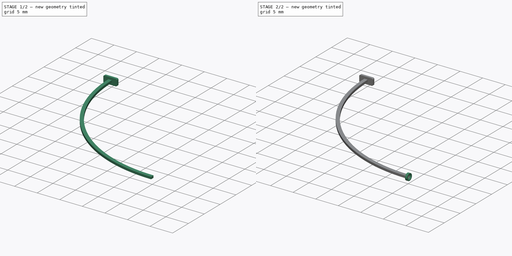
[diagram: build sequence overview — one tinted view per stage of 2, left to right]
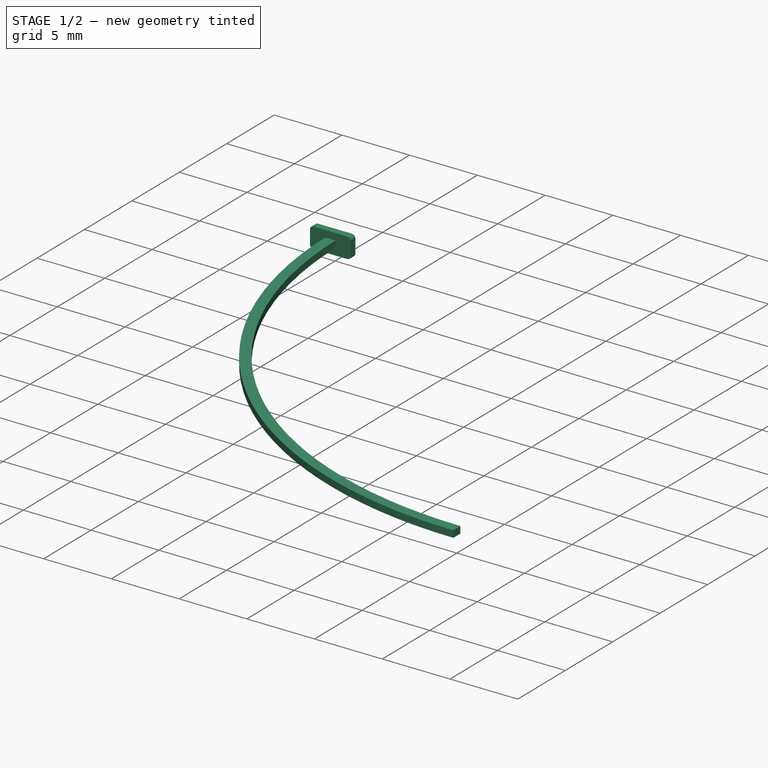
[diagram: stage 1 of 2 — iso view after this stage's code; geometry added in this stage tinted green]
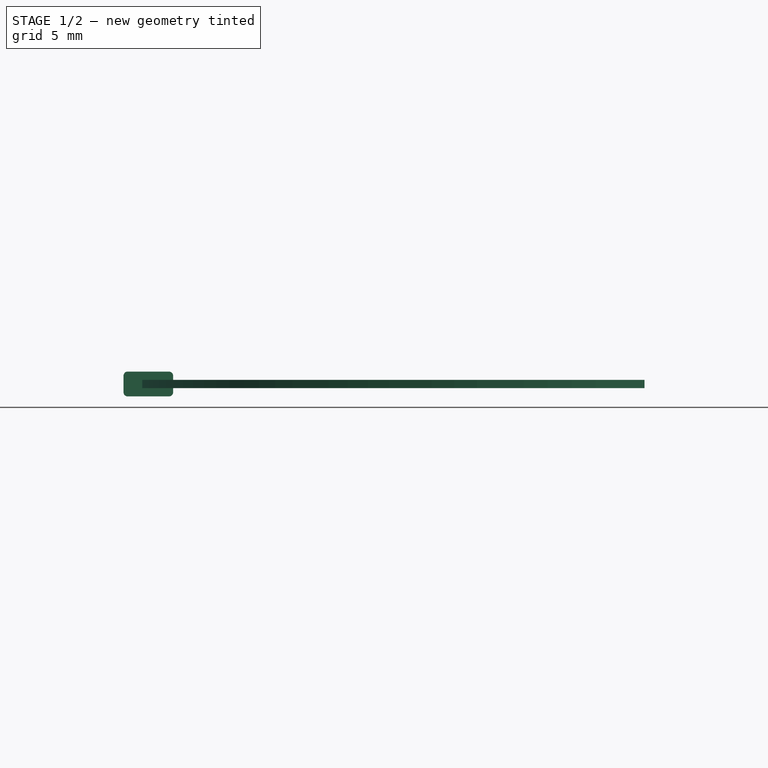
[diagram: stage 1 of 2 — front view after this stage's code; geometry added in this stage tinted green]
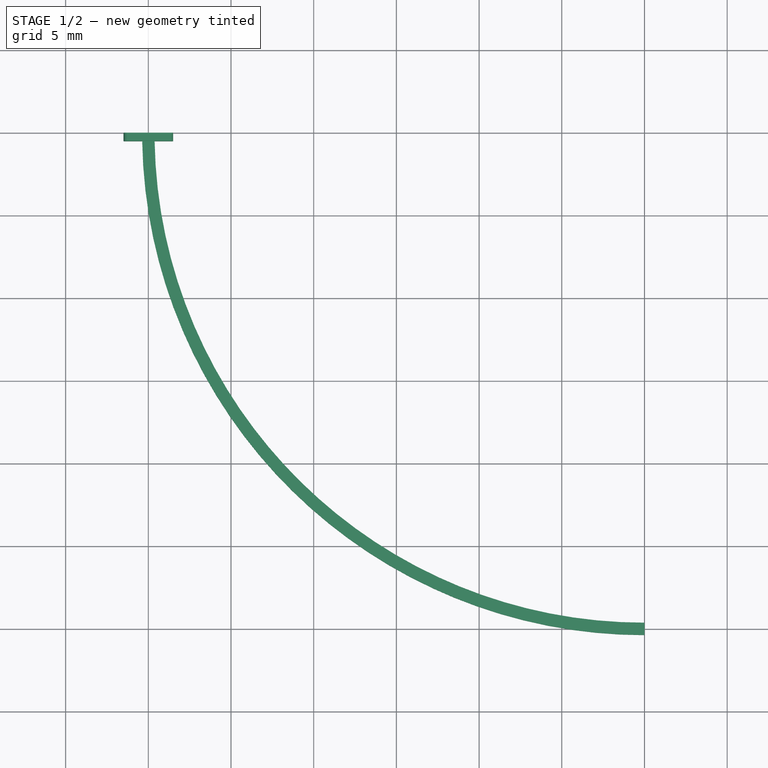
[diagram: stage 1 of 2 — top view after this stage's code; geometry added in this stage tinted green]
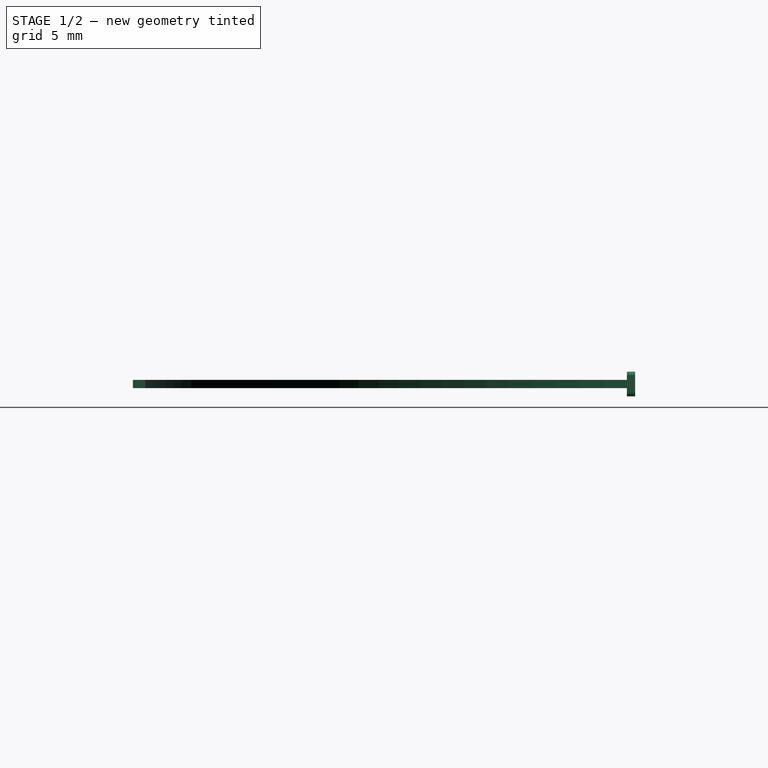
[diagram: stage 1 of 2 — right view after this stage's code; geometry added in this stage tinted green]
FCSTD DOCUMENT  (FreeCAD 0.20R29177 (Git))
Label: scu
License: All rights reserved
LicenseURL: http://en.wikipedia.org/wiki/All_rights_reserved
objects: Sketcher::SketchObject×3, PartDesign::Line×3, PartDesign::Pad×2, Spreadsheet::Sheet×1, PartDesign::Plane×1, PartDesign::Revolution×1, PartDesign::Point×1, PartDesign::Body×1
note: 15 computed .brp shape members not serialized (recipe doc carries the construction recipe); baked Part::Feature solids carry a one-line shape summary decoded from their .brp

FEATURE [Spreadsheet::Sheet] Spreadsheet
  cells = A2=Design Parameters; A3=RefLength; B3(RefLength)==1mm; A4=ArmArcRadius; B4(ArmArcRadius)==30 * RefLength; A5=ArmWidth; B5(ArmWidth)==0.75 * RefLength; A6=ArmThickness; B6(ArmThickness)==0.5 * RefLength; A7=ArmBaseWidth; B7(ArmBaseWidth)==3 * RefLength; A8=ArmBaseHeight; B8(ArmBaseHeight)==1.5 * RefLength; A9=ArmBasePadLength; B9(ArmBasePadLength)==0.5 * RefLength; A10=ArmBaseCornerRadius; B10(ArmBaseCornerRadius)==0.25 * RefLength; A11=TipDatumPlaneOffsetX; B11(JointPinDatumPlaneOffsetX)==ArmArcRadius; A12=TipDatumPlaneOffsetY; B12(JointPinDatumPlaneOffsetY)==-ArmArcRadius; A13=TipDatumPlaneOffsetZ; B13(JointPinDatumPlaneOffsetZ)==0 * ArmThickness; A14=BallDiameter; B14(BallDiameter)==1.25 * RefLength; A15=BallMargin; B15(BallMargin)==0.01 * RefLength; A16=BallCutoutDiameter; B16(BallCutoutDiameter)==BallDiameter + 2 * BallMargin; A17=BallDepth; B17(BallDepth)==0.25 * BallCutoutDiameter; A18=TipPlateDiameter; B18(TipPlateDiameter)==1.2 * BallDiameter; A19=TipPlateThickness; B19(TipPlateThickness)==0.5 * RefLength
FEATURE [Sketcher::SketchObject] Sketch  label="ArmSketch"
  FullyConstrained = true
  MapMode = 5
  Support = -> [XY_Plane]
  expr: Constraints[20] = Spreadsheet.ArmWidth
  expr: Constraints[9] = Spreadsheet.ArmArcRadius
  sketch-geometry (14):
    g0: LineSegment StartX=0 StartY=0 StartZ=0 EndX=0 EndY=-30 EndZ=0
    g1: LineSegment StartX=0 StartY=-30 StartZ=0 EndX=30 EndY=-30 EndZ=0
    g2: LineSegment StartX=0 StartY=0 StartZ=0 EndX=30 EndY=0 EndZ=0
    g3: LineSegment StartX=30 StartY=0 StartZ=0 EndX=30 EndY=-30 EndZ=0
    g4: ArcOfCircle CenterX=30 CenterY=0 CenterZ=0 NormalX=0 NormalY=0 NormalZ=1 AngleXU=0 Radius=30 StartAngle=3.14159 EndAngle=4.71239
    g5: LineSegment StartX=-0.375 StartY=0 StartZ=0 EndX=0 EndY=0 EndZ=0
    g6: LineSegment StartX=0 StartY=0 StartZ=0 EndX=0.375 EndY=0 EndZ=0
    g7: ArcOfCircle CenterX=30 CenterY=0 CenterZ=0 NormalX=0 NormalY=0 NormalZ=1 AngleXU=0 Radius=30.375 StartAngle=3.14159 EndAngle=4.71239
    g8: ArcOfCircle CenterX=30 CenterY=0 CenterZ=0 NormalX=0 NormalY=0 NormalZ=1 AngleXU=0 Radius=29.625 StartAngle=3.14159 EndAngle=4.71239
    g9: LineSegment StartX=30 StartY=-30 StartZ=0 EndX=30 EndY=-30.375 EndZ=0
    g10: LineSegment StartX=30 StartY=-29.625 StartZ=0 EndX=30 EndY=-30 EndZ=0
    g11: LineSegment StartX=30 StartY=-29.625 StartZ=0 EndX=30 EndY=-30 EndZ=0
    g12: LineSegment StartX=30 StartY=-30 StartZ=0 EndX=30 EndY=-30.375 EndZ=0
    g13: LineSegment StartX=30 StartY=-29.625 StartZ=0 EndX=30 EndY=-30.375 EndZ=0
  constraints (35):
    c: Vertical(g0)
    c: Coincident(g0,g1)
    c: Horizontal(g1)
    c: Horizontal(g2)
    c: Coincident(g2,g3)
    c: Vertical(g3)
    c: Coincident(g3,g1)
    c: Coincident(g4,g2)
    c: Coincident(g4,g1)
    c: Radius(g4) = 30
    c: Horizontal(g5)
    c: Horizontal(g6)
    c: Equal(g5,g6)
    c: Coincident(g7,g2)
    c: Coincident(g8,g7)
    c: Coincident(g9,g1)
    c: Coincident(g9,g7)
    c: Vertical(g10)
    c: Coincident(g1,g10)
    c: Coincident(g10,g8)
    c: DistanceX(g5,g6) = 0.75
    c: Coincident(g4,g2)
    c: Coincident(g4,g0)
    c: Coincident(g6,g5)
    c: Coincident(g6,g-1)
    c: Coincident(g0,g5)
    c: Coincident(g8,g6)
    c: Coincident(g7,g5)
    c: Coincident(g11,g8)
    c: Coincident(g11,g1)
    c: Coincident(g12,g11)
    c: Coincident(g12,g7)
    c: Coincident(g8,g13)
    c: Coincident(g13,g7)
    c: Vertical(g9)
FEATURE [PartDesign::Pad] Pad  label="ArmPad"
  Direction = (0,0,1)
  Length = 0.5
  Length2 = 10
  Midplane = true
  Profile = -> Sketch
  ReferenceAxis = -> Sketch [N_Axis]
  Type = 0
  expr: Length = Spreadsheet.ArmThickness
FEATURE [Sketcher::SketchObject] Sketch002  label="ArmBaseSketch"
  FullyConstrained = true
  MapMode = 5
  Placement = pos=(0,0,0) rot=(1,0,0;1.5708rad)
  Support = -> [XZ_Plane]
  expr: Constraints[20] = Spreadsheet.ArmBaseWidth
  expr: Constraints[21] = Spreadsheet.ArmBaseCornerRadius
  expr: Constraints[22] = Spreadsheet.ArmBaseHeight
  sketch-geometry (10):
    g0: ArcOfCircle CenterX=-1.25 CenterY=0.5 CenterZ=0 NormalX=0 NormalY=0 NormalZ=1 AngleXU=0 Radius=0.25 StartAngle=1.5708 EndAngle=3.14159
    g1: LineSegment StartX=-1.25 StartY=0.75 StartZ=0 EndX=1.25 EndY=0.75 EndZ=0
    g2: ArcOfCircle CenterX=1.25 CenterY=0.5 CenterZ=0 NormalX=0 NormalY=0 NormalZ=1 AngleXU=0 Radius=0.25 StartAngle=2e-16 EndAngle=1.5708
    g3: LineSegment StartX=1.5 StartY=0.5 StartZ=0 EndX=1.5 EndY=-0.5 EndZ=0
    g4: ArcOfCircle CenterX=1.25 CenterY=-0.5 CenterZ=0 NormalX=0 NormalY=0 NormalZ=1 AngleXU=0 Radius=0.25 StartAngle=4.71239 EndAngle=6.28319
    g5: LineSegment StartX=1.25 StartY=-0.75 StartZ=0 EndX=-1.25 EndY=-0.75 EndZ=0
    g6: ArcOfCircle CenterX=-1.25 CenterY=-0.5 CenterZ=0 NormalX=0 NormalY=0 NormalZ=1 AngleXU=0 Radius=0.25 StartAngle=3.14159 EndAngle=4.71239
    g7: LineSegment StartX=-1.5 StartY=-0.5 StartZ=0 EndX=-1.5 EndY=0.5 EndZ=0
    g8: GeomPoint X=-1.5 Y=0.75 Z=0
    g9: GeomPoint X=1.5 Y=-0.75 Z=0
  constraints (23):
    c: Tangent(g0,g1) = 1.5708
    c: Tangent(g1,g2) = 1.5708
    c: Tangent(g2,g3) = 1.5708
    c: Tangent(g3,g4) = 1.5708
    c: Tangent(g4,g5) = 1.5708
    c: Tangent(g5,g6) = 1.5708
    c: Tangent(g6,g7) = 1.5708
    c: Tangent(g7,g0) = 1.5708
    c: Horizontal(g1)
    c: Horizontal(g5)
    c: Vertical(g3)
    c: Vertical(g7)
    c: Equal(g0,g2)
    c: Equal(g2,g4)
    c: Equal(g4,g6)
    c: PointOnObject(g8,g1)
    c: PointOnObject(g8,g7)
    c: PointOnObject(g9,g3)
    c: PointOnObject(g9,g5)
    c: Symmetric(g0,g4,g-1)
    c: DistanceX(g6,g3) = 3
    c: Radius(g0) = 0.25
    c: DistanceY(g4,g1) = 1.5
FEATURE [PartDesign::Pad] Pad001  label="ArmBasePad"
  BaseFeature = -> Pad
  Direction = (0,-1,-2e-16)
  Length = 0.5
  Length2 = 10
  Profile = -> Sketch002
  ReferenceAxis = -> Sketch002 [N_Axis]
  Type = 0
  expr: Length = Spreadsheet.ArmBasePadLength
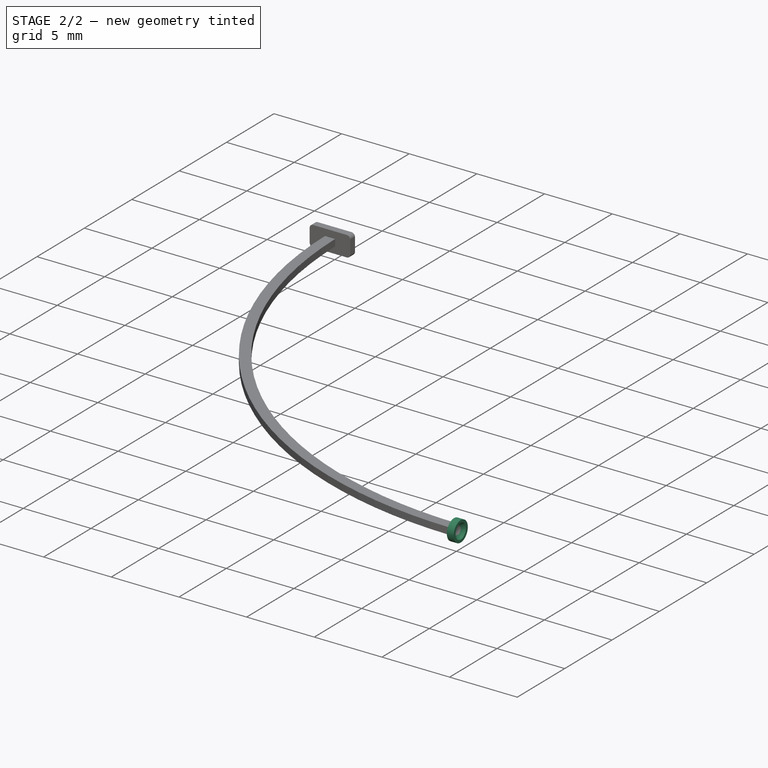
[diagram: stage 2 of 2 — iso view after this stage's code; geometry added in this stage tinted green]
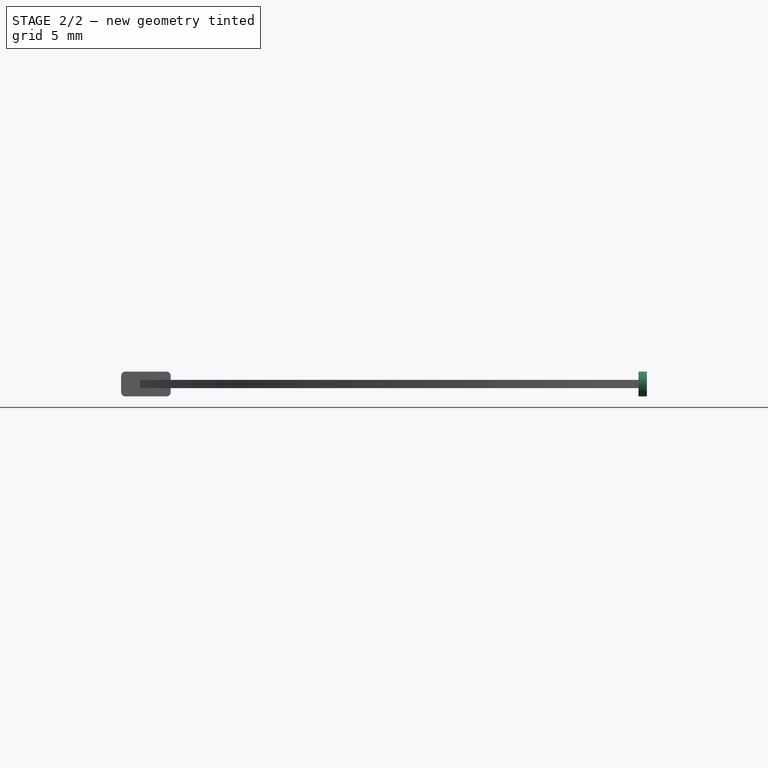
[diagram: stage 2 of 2 — front view after this stage's code; geometry added in this stage tinted green]
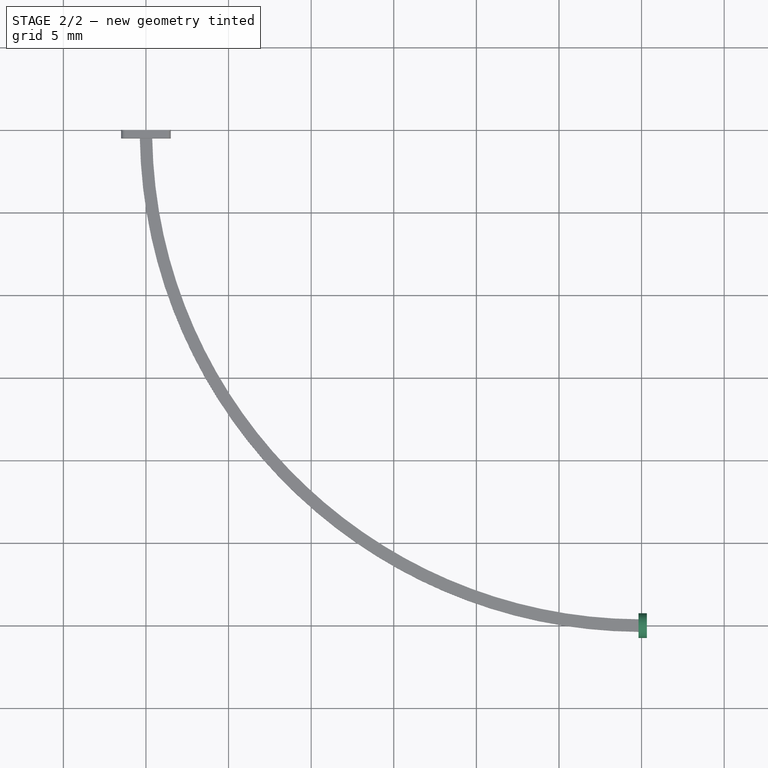
[diagram: stage 2 of 2 — top view after this stage's code; geometry added in this stage tinted green]
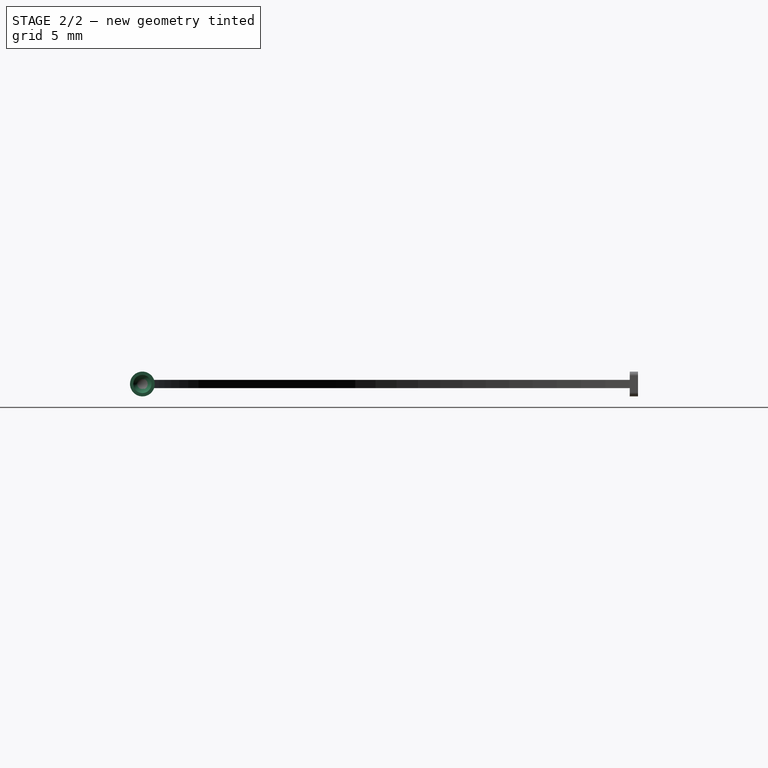
[diagram: stage 2 of 2 — right view after this stage's code; geometry added in this stage tinted green]
FEATURE [PartDesign::Plane] DatumPlane  label="TipDatumPlane"
  AttachmentOffset = pos=(30,-30,0) rot=(0,0,1;0rad)
  Length = 66.7735
  MapMode = 5
  Placement = pos=(30,-30,0) rot=(0,0,1;0rad)
  ResizeMode = 0
  Support = -> [XY_Plane]
  Width = 66.8885
  expr: .AttachmentOffset.Base.x = Spreadsheet.JointPinDatumPlaneOffsetX
  expr: .AttachmentOffset.Base.y = Spreadsheet.JointPinDatumPlaneOffsetY
  expr: .AttachmentOffset.Base.z = Spreadsheet.JointPinDatumPlaneOffsetZ
  expr: .AttachmentOffset.Rotation.Pitch = 0°
FEATURE [Sketcher::SketchObject] Sketch003  label="TipPlateSketch"
  FullyConstrained = true
  MapMode = 5
  Placement = pos=(30,-30,0) rot=(0,0,1;0rad)
  Support = -> [DatumPlane]
  expr: Constraints[13] = Spreadsheet.BallDepth
  expr: Constraints[14] = Spreadsheet.TipPlateThickness
  expr: Constraints[9] = Spreadsheet.BallCutoutDiameter
  sketch-geometry (6):
    g0: LineSegment StartX=0 StartY=0 StartZ=0 EndX=-0.1825 EndY=0 EndZ=0
    g1: LineSegment StartX=-0.1825 StartY=0 StartZ=0 EndX=-0.1825 EndY=0.75 EndZ=0
    g2: LineSegment StartX=-0.1825 StartY=0.75 StartZ=0 EndX=0.3175 EndY=0.75 EndZ=0
    g3: LineSegment StartX=0.3175 StartY=0.75 StartZ=0 EndX=0.3175 EndY=0.549926 EndZ=0
    g4: ArcOfCircle CenterX=0.635 CenterY=0 CenterZ=0 NormalX=0 NormalY=0 NormalZ=1 AngleXU=0 Radius=0.635 StartAngle=2.0944 EndAngle=3.14159
    g5: LineSegment StartX=0.3175 StartY=0.549926 StartZ=0 EndX=0.3175 EndY=0 EndZ=0
  constraints (18):
    c: Horizontal(g0)
    c: Vertical(g1)
    c: Coincident(g1,g2)
    c: Horizontal(g2)
    c: Vertical(g3)
    c: Coincident(g2,g3)
    c: Coincident(g4,g3)
    c: Coincident(g4,g0)
    c: PointOnObject(g4,g-1)
    c: Diameter(g4) = 1.27
    c: Vertical(g5)
    c: Coincident(g5,g3)
    c: PointOnObject(g5,g-1)
    c: DistanceX(g0,g5) = 0.3175
    c: DistanceX(g2,g2) = 0.5
    c: DistanceY(g0,g1) = 0.75
    c: Coincident(g1,g0)
    c: Coincident(g0,g-1)
FEATURE [PartDesign::Line] DatumLine  label="TipDatumLine"
  AttacherType = Attacher::AttachEngineLine
  Length = 20
  MapMode = 29
  Placement = pos=(30,-30,0) rot=(0.57735,-0.57735,-0.57735;2.0944rad)
  ResizeMode = 0
  Support = -> [Sketch003]
FEATURE [PartDesign::Revolution] Revolution  label="TipPlateRevolution"
  Angle = 360
  Axis = (-1,0,0)
  Base = (30,-30,0)
  BaseFeature = -> Pad001
  Profile = -> Sketch003
  ReferenceAxis = -> DatumLine
  Reversed = true
FEATURE [PartDesign::Point] DatumPoint  label="jointCenterDatumPoint"
  AttacherType = Attacher::AttachEnginePoint
  AttachmentOffset = pos=(0.635,0,0) rot=(0,0,1;0rad)
  MapMode = 32
  Placement = pos=(30.635,-30,0) rot=(0,0,1;0rad)
  Support = -> [DatumPlane]
  expr: .AttachmentOffset.Base.x = 0.5 * Spreadsheet.BallCutoutDiameter
FEATURE [PartDesign::Line] DatumLine001  label="HingeAxis1DatumLine"
  AttacherType = Attacher::AttachEngineLine
  Length = 20
  MapMode = 17
  Placement = pos=(30.635,-30,0) rot=(1,0,0;1.5708rad)
  ResizeMode = 0
  Support = -> [DatumPoint]
FEATURE [PartDesign::Line] DatumLine002  label="HingeAxis2DatumLine"
  AttacherType = Attacher::AttachEngineLine
  Length = 20
  MapMode = 18
  Placement = pos=(30.635,-30,0) rot=(0,0,1;0rad)
  ResizeMode = 0
  Support = -> [DatumPoint]
FEATURE [PartDesign::Body] Body
  Group = -> [Sketch,Pad,Sketch002,Pad001,DatumPlane,Sketch003,DatumLine,Revolution,DatumPoint,DatumLine001,DatumLine002]
  Origin = -> Origin
  Tip = -> Revolution
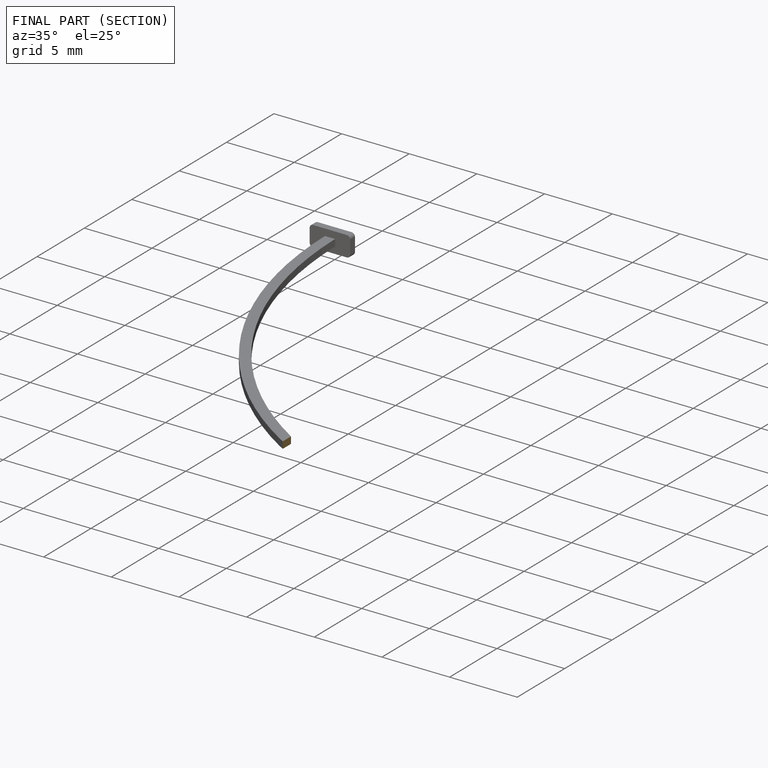
[diagram: finished part — half-section view (interior)]
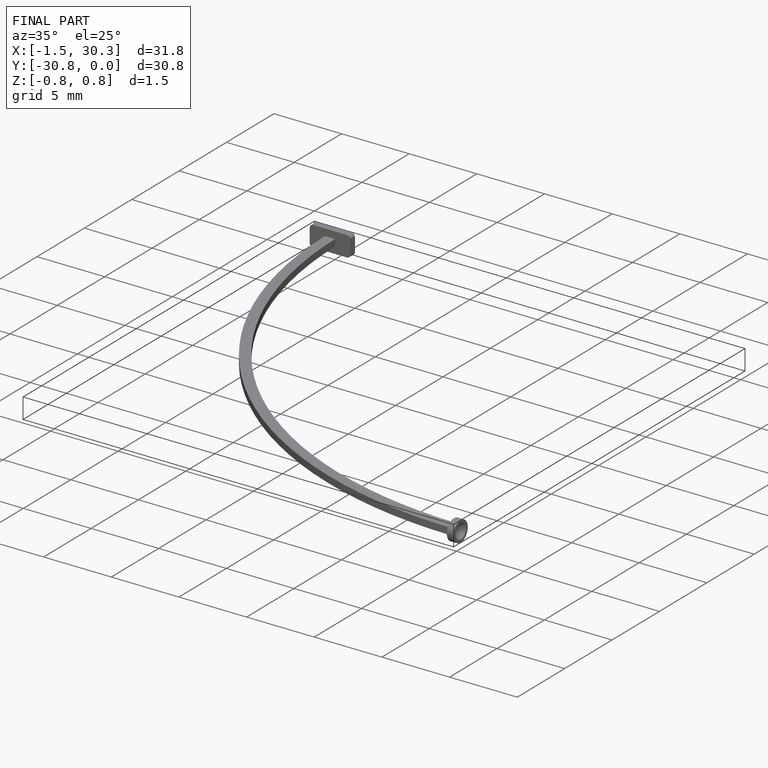
[diagram: finished part — iso view with bounding-box wireframe]
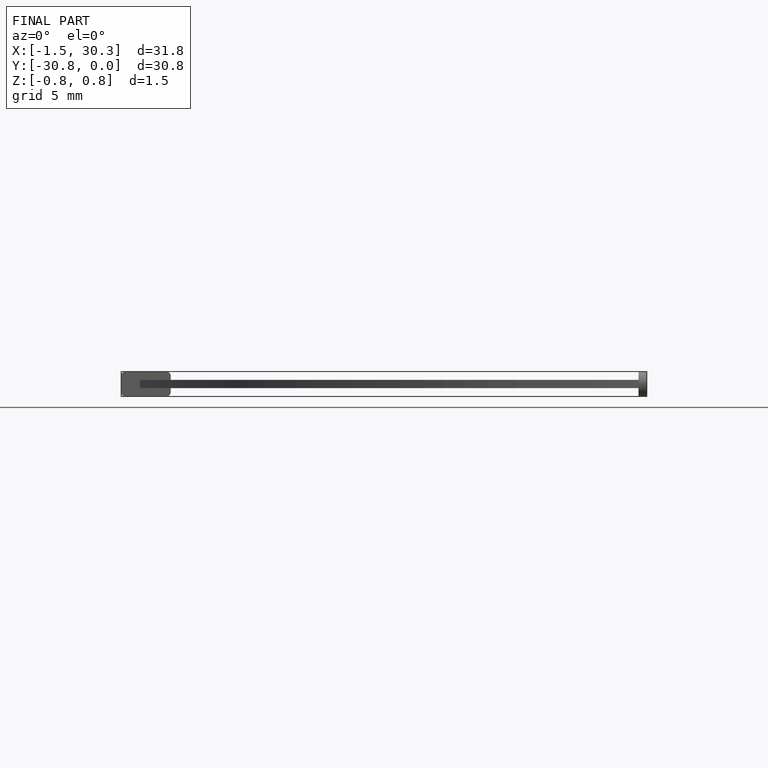
[diagram: finished part — front view with bounding-box wireframe]
